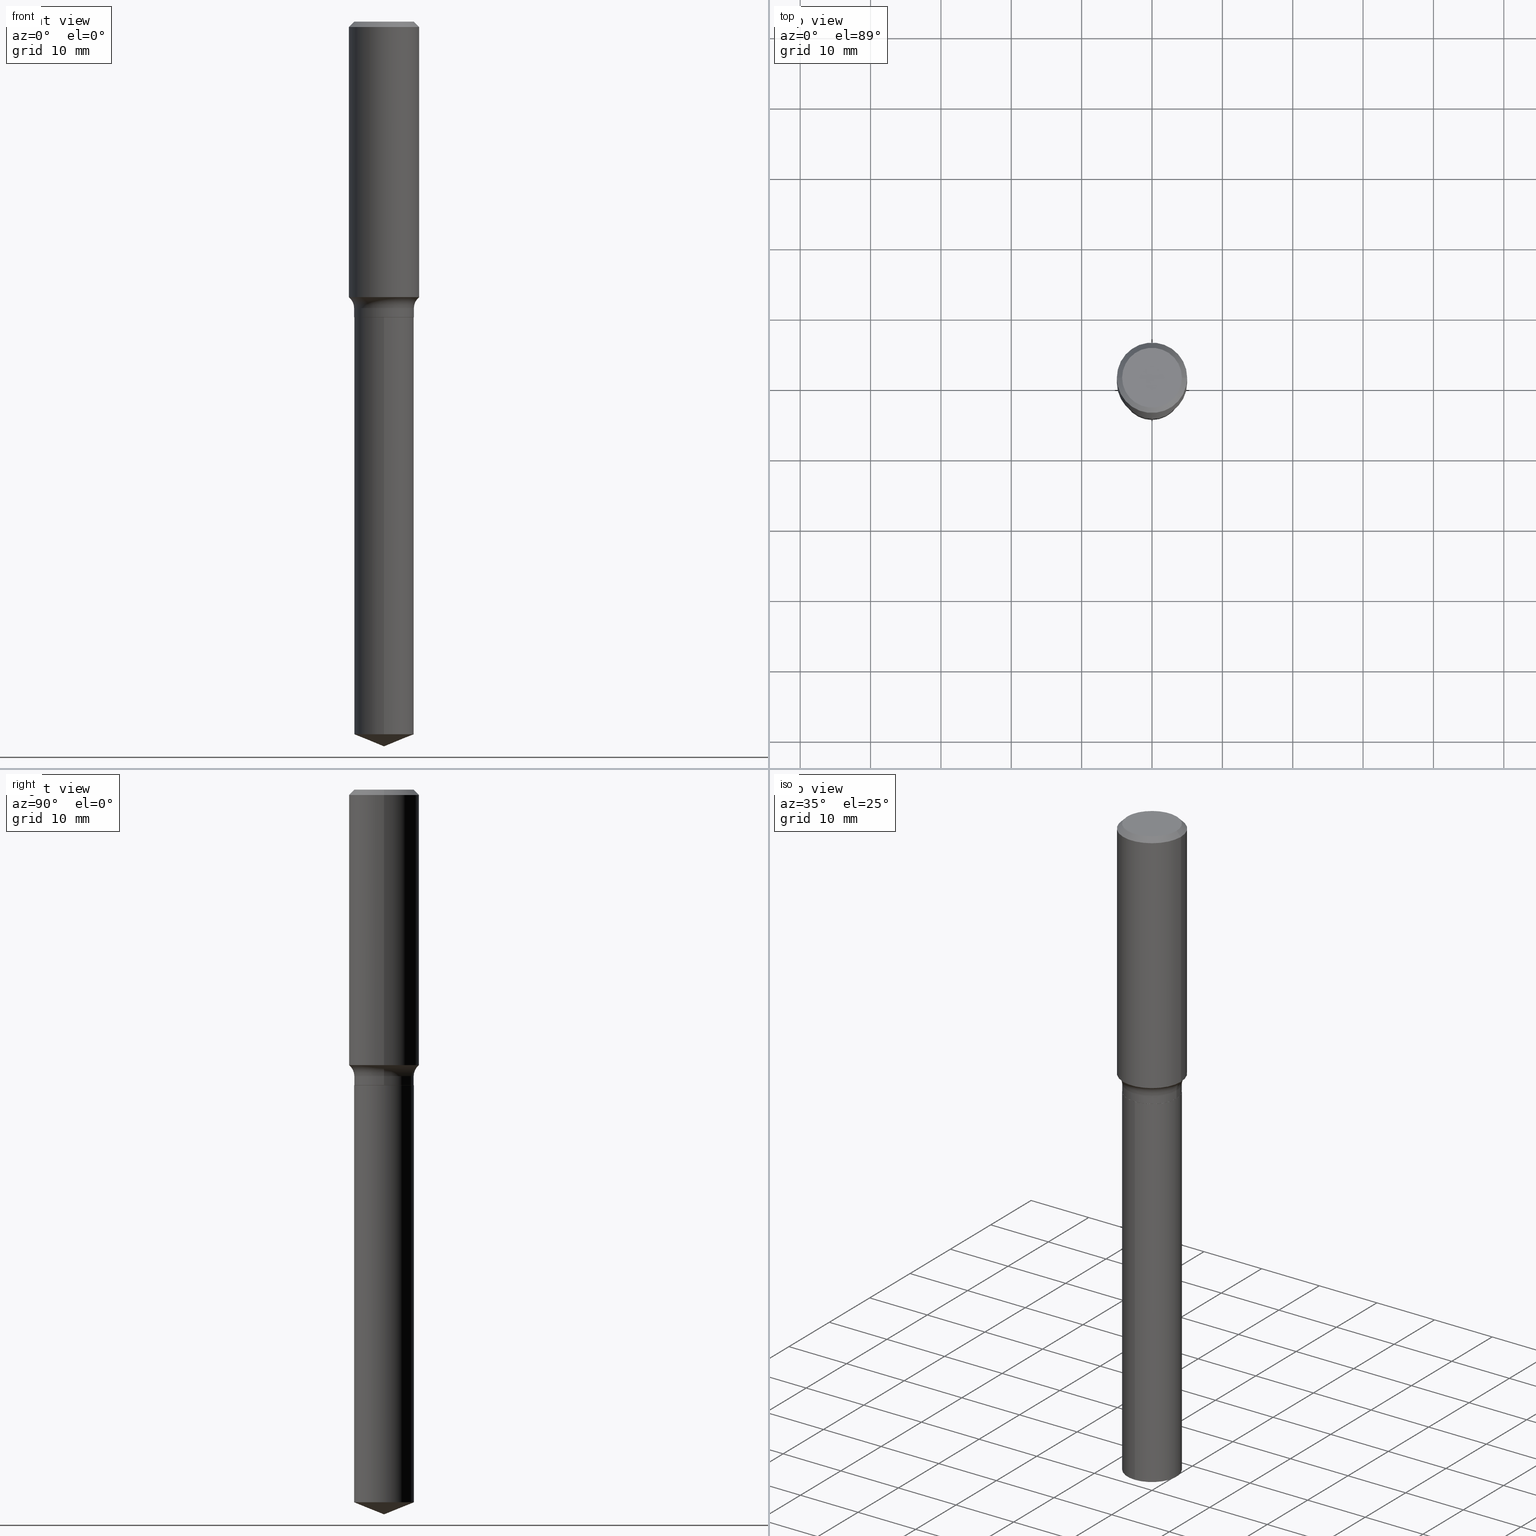
[diagram: canonical four-view strip — front | top / right | iso, engineering-drawing reading convention]
A machine part, canonical four-view strip (front | top / right | iso — engineering-drawing reading convention). The complete STEP part file that produces these views, byte-faithful:
ISO-10303-21;
HEADER;
FILE_DESCRIPTION (( 'STEP AP203' ),
    '1' );
FILE_NAME ('69278.STEP',
    '2024-04-19T17:37:56',
    ( '' ),
    ( '' ),
    'SwSTEP 2.0',
    'SolidWorks 2023',
    '' );
FILE_SCHEMA (( 'CONFIG_CONTROL_DESIGN' ));
ENDSEC;

DATA;
#1 = DIRECTION ( 'NONE',  ( 1.000000000000000000, -6.982962677686264344E-15, 0.000000000000000000 ) ) ;
#2 = CARTESIAN_POINT ( 'NONE',  ( 7.220858017463212113E-31, -1.030947152326916979E-16, -0.02952750000000020289 ) ) ;
#3 = APPROVAL_ROLE ( '' ) ;
#4 = DIRECTION ( 'NONE',  ( 1.000000000000000000, -6.982962677686265922E-15, 0.000000000000000000 ) ) ;
#5 = CONICAL_SURFACE ( 'NONE', #99, 97.44436430772995550, 1.186823891356150407 ) ;
#6 = CIRCLE ( 'NONE', #306, 0.1673000000000000043 ) ;
#7 = ADVANCED_FACE ( 'NONE', ( #241 ), #122, .T. ) ;
#8 = LINE ( 'NONE', #243, #263 ) ;
#9 = DATE_AND_TIME ( #152, #393 ) ;
#10 = ORIENTED_EDGE ( 'NONE', *, *, #244, .F. ) ;
#11 = DIRECTION ( 'NONE',  ( 6.982962677686265922E-15, 1.000000000000000000, -3.491426395809013417E-15 ) ) ;
#12 = ORIENTED_EDGE ( 'NONE', *, *, #453, .F. ) ;
#13 = CARTESIAN_POINT ( 'NONE',  ( 3.919597402553536225E-29, -5.596146289897792721E-15, -1.602800000000000002 ) ) ;
#14 = DIRECTION ( 'NONE',  ( 1.000000000000000000, -6.982962677686261977E-15, 0.000000000000000000 ) ) ;
#15 = EDGE_LOOP ( 'NONE', ( #163, #85, #10, #12 ) ) ;
#16 = DIRECTION ( 'NONE',  ( 1.000000000000000000, -6.982962677686264344E-15, 0.000000000000000000 ) ) ;
#17 = ORIENTED_EDGE ( 'NONE', *, *, #411, .T. ) ;
#18 = EDGE_LOOP ( 'NONE', ( #340, #235, #157, #296 ) ) ;
#19 = DIRECTION ( 'NONE',  ( -2.445468806185136597E-29, 3.491481338843145583E-15, 1.000000000000000000 ) ) ;
#20 = CC_DESIGN_PERSON_AND_ORGANIZATION_ASSIGNMENT ( #327, #475, ( #255 ) ) ;
#21 = ORIENTED_EDGE ( 'NONE', *, *, #299, .T. ) ;
#22 = DIRECTION ( 'NONE',  ( 1.000000000000000000, 0.000000000000000000, 0.000000000000000000 ) ) ;
#23 = DIRECTION ( 'NONE',  ( -1.000000000000000000, 6.982962677686266711E-15, 0.000000000000000000 ) ) ;
#24 = EDGE_CURVE ( 'NONE', #25, #224, #87, .T. ) ;
#25 = VERTEX_POINT ( 'NONE', #468 ) ;
#26 = CARTESIAN_POINT ( 'NONE',  ( -0.1968500000000002192, -3.984016639519789812E-15, -1.541672285336354919 ) ) ;
#27 = CARTESIAN_POINT ( 'NONE',  ( 7.220858017463212113E-31, -1.030947152326916979E-16, -0.02952750000000020289 ) ) ;
#28 = EDGE_CURVE ( 'NONE', #367, #407, #335, .T. ) ;
#29 = CIRCLE ( 'NONE', #111, 0.1668000000000000038 ) ;
#30 = ORIENTED_EDGE ( 'NONE', *, *, #69, .T. ) ;
#31 = DESIGN_CONTEXT ( 'detailed design', #391, 'design' ) ;
#32 = CIRCLE ( 'NONE', #426, 0.1673000000000000043 ) ;
#33 = DIRECTION ( 'NONE',  ( -6.982962677686266711E-15, -1.000000000000000000, 3.265807523806650431E-15 ) ) ;
#34 = APPROVAL_PERSON_ORGANIZATION ( #373, #126, #165 ) ;
#35 = ORIENTED_EDGE ( 'NONE', *, *, #177, .F. ) ;
#36 = DATE_AND_TIME ( #135, #456 ) ;
#37 = LINE ( 'NONE', #414, #352 ) ;
#38 = ADVANCED_FACE ( 'NONE', ( #428 ), #382, .F. ) ;
#39 = DIRECTION ( 'NONE',  ( -6.982962677686265133E-15, -1.000000000000000000, 3.498761904101772732E-15 ) ) ;
#40 = ORIENTED_EDGE ( 'NONE', *, *, #264, .T. ) ;
#41 = AXIS2_PLACEMENT_3D ( 'NONE', #13, #62, #362 ) ;
#42 = PRODUCT_DEFINITION_FORMATION_WITH_SPECIFIED_SOURCE ( 'ANY', '', #255, .NOT_KNOWN. ) ;
#43 = DIRECTION ( 'NONE',  ( 1.000000000000000000, -6.982962677686267499E-15, 4.876294436782262290E-29 ) ) ;
#44 = DATE_AND_TIME ( #237, #100 ) ;
#45 = EDGE_CURVE ( 'NONE', #219, #415, #324, .T. ) ;
#46 = DIRECTION ( 'NONE',  ( -6.982962677686266711E-15, -1.000000000000000000, 3.265807523806650431E-15 ) ) ;
#47 = CARTESIAN_POINT ( 'NONE',  ( 3.919597402553536225E-29, -5.596146289897792721E-15, -1.602800000000000002 ) ) ;
#48 = CC_DESIGN_PERSON_AND_ORGANIZATION_ASSIGNMENT ( #492, #245, ( #369 ) ) ;
#49 = FACE_OUTER_BOUND ( 'NONE', #15, .T. ) ;
#50 = AXIS2_PLACEMENT_3D ( 'NONE', #54, #346, #168 ) ;
#51 = VECTOR ( 'NONE', #389, 39.37007874015748143 ) ;
#52 = CARTESIAN_POINT ( 'NONE',  ( -1.001697619218021790E-46, 1.430158722866389718E-32, 4.096137381448108366E-18 ) ) ;
#53 = LINE ( 'NONE', #181, #232 ) ;
#54 = CARTESIAN_POINT ( 'NONE',  ( -1.001697619218021790E-46, 1.430158722866389718E-32, 4.096137381448108366E-18 ) ) ;
#55 = DIRECTION ( 'NONE',  ( 0.000000000000000000, 0.000000000000000000, 1.000000000000000000 ) ) ;
#56 = VERTEX_POINT ( 'NONE', #252 ) ;
#57 = CARTESIAN_POINT ( 'NONE',  ( 0.000000000000000000, 0.000000000000000000, 0.000000000000000000 ) ) ;
#58 = EDGE_LOOP ( 'NONE', ( #40, #248, #35, #269 ) ) ;
#59 = EDGE_CURVE ( 'NONE', #321, #413, #32, .T. ) ;
#60 = MECHANICAL_CONTEXT ( 'NONE', #339, 'mechanical' ) ;
#61 = EDGE_LOOP ( 'NONE', ( #155, #156, #190, #275 ) ) ;
#62 = DIRECTION ( 'NONE',  ( -2.445468806185136597E-29, 3.491481338843145583E-15, 1.000000000000000000 ) ) ;
#63 = AXIS2_PLACEMENT_3D ( 'NONE', #2, #460, #491 ) ;
#64 = DIRECTION ( 'NONE',  ( 2.445468806185136597E-29, -3.491481338843145583E-15, -1.000000000000000000 ) ) ;
#65 = CONICAL_SURFACE ( 'NONE', #410, 0.1968500000000000527, 0.7853981633974457255 ) ;
#66 = ORIENTED_EDGE ( 'NONE', *, *, #82, .T. ) ;
#67 = APPLICATION_PROTOCOL_DEFINITION ( 'international standard', 'config_control_design', 1994, #339 ) ;
#68 = CARTESIAN_POINT ( 'NONE',  ( -1.168249655976871963E-15, -0.1673000000000057774, -1.653399999999999093 ) ) ;
#69 = EDGE_CURVE ( 'NONE', #351, #400, #308, .T. ) ;
#70 = ADVANCED_FACE ( 'NONE', ( #49 ), #86, .T. ) ;
#71 = ORIENTED_EDGE ( 'NONE', *, *, #469, .F. ) ;
#72 = CARTESIAN_POINT ( 'NONE',  ( -0.1968500000000001360, 1.398703375343758182E-15, -9.682923725166790684E-30 ) ) ;
#73 = CIRCLE ( 'NONE', #480, 0.1673000000000000043 ) ;
#74 = ORIENTED_EDGE ( 'NONE', *, *, #140, .F. ) ;
#75 = AXIS2_PLACEMENT_3D ( 'NONE', #222, #294, #398 ) ;
#76 = CARTESIAN_POINT ( 'NONE',  ( 7.220858017463212113E-31, -1.030947152326916979E-16, -0.02952750000000020289 ) ) ;
#77 = ORIENTED_EDGE ( 'NONE', *, *, #469, .T. ) ;
#78 = ORIENTED_EDGE ( 'NONE', *, *, #299, .F. ) ;
#79 = APPROVAL_STATUS ( 'not_yet_approved' ) ;
#80 = CYLINDRICAL_SURFACE ( 'NONE', #440, 0.1673000000000000043 ) ;
#81 = AXIS2_PLACEMENT_3D ( 'NONE', #97, #55, #22 ) ;
#82 = EDGE_CURVE ( 'NONE', #415, #219, #350, .T. ) ;
#83 = APPROVAL_STATUS ( 'not_yet_approved' ) ;
#84 = DIRECTION ( 'NONE',  ( -2.445468806185136877E-29, 3.491481338843145188E-15, 1.000000000000000000 ) ) ;
#85 = ORIENTED_EDGE ( 'NONE', *, *, #159, .T. ) ;
#86 = CYLINDRICAL_SURFACE ( 'NONE', #463, 0.1673000000000000043 ) ;
#87 = CIRCLE ( 'NONE', #63, 0.1968500000000000527 ) ;
#88 = CIRCLE ( 'NONE', #236, 0.1673000000000000043 ) ;
#89 = PERSON ( 'UNSPECIFIED', 'UNSPECIFIED', 'UNSPECIFIED', ('UNSPECIFIED'), ('UNSPECIFIED'), ('UNSPECIFIED') ) ;
#90 = DIRECTION ( 'NONE',  ( -6.982962677686266711E-15, -1.000000000000000000, 3.491481338843145583E-15 ) ) ;
#91 = DIRECTION ( 'NONE',  ( -2.445468806185136597E-29, 3.491481338843145583E-15, 1.000000000000000000 ) ) ;
#92 = EDGE_LOOP ( 'NONE', ( #365, #30, #355, #303 ) ) ;
#93 = DIRECTION ( 'NONE',  ( -2.445507172700810819E-29, 3.491426395809013811E-15, 1.000000000000000000 ) ) ;
#94 = CARTESIAN_POINT ( 'NONE',  ( -0.1968500000000000527, 1.271501487869850317E-15, -0.02952750000000020289 ) ) ;
#95 = DIRECTION ( 'NONE',  ( -2.445468806185136597E-29, 3.491481338843145583E-15, 1.000000000000000000 ) ) ;
#96 = DIRECTION ( 'NONE',  ( 7.105427357601001859E-15, 1.000000000000000000, -3.491481338843145583E-15 ) ) ;
#97 = CARTESIAN_POINT ( 'NONE',  ( 0.000000000000000000, 0.000000000000000000, 0.000000000000000000 ) ) ;
#98 = MANIFOLD_SOLID_BREP ( 'Body-Move/Copy2[2]', #487 ) ;
#99 = AXIS2_PLACEMENT_3D ( 'NONE', #333, #266, #228 ) ;
#100 = LOCAL_TIME ( 13, 37, 56.00000000000000000, #313 ) ;
#101 = FACE_OUTER_BOUND ( 'NONE', #359, .T. ) ;
#102 = MANIFOLD_SOLID_BREP ( 'Body-Move/Copy2[1]', #402 ) ;
#103 = ORIENTED_EDGE ( 'NONE', *, *, #371, .F. ) ;
#104 = CARTESIAN_POINT ( 'NONE',  ( 4.043338124146504977E-29, -5.772815245643255982E-15, -1.653399999999999981 ) ) ;
#105 = ADVANCED_FACE ( 'NONE', ( #385 ), #132, .F. ) ;
#106 = CARTESIAN_POINT ( 'NONE',  ( 0.1968500000000000527, -1.477690918335233688E-15, -0.02952750000000020289 ) ) ;
#107 = VERTEX_POINT ( 'NONE', #131 ) ;
#108 = APPROVAL_ROLE ( '' ) ;
#109 = DIRECTION ( 'NONE',  ( 1.000000000000000000, -6.982962677686266711E-15, 4.876176775795935793E-29 ) ) ;
#110 = VECTOR ( 'NONE', #142, 39.37007874015748143 ) ;
#111 = AXIS2_PLACEMENT_3D ( 'NONE', #366, #257, #328 ) ;
#112 = COORDINATED_UNIVERSAL_TIME_OFFSET ( 5, 0, .BEHIND. ) ;
#113 = ADVANCED_FACE ( 'NONE', ( #316 ), #280, .T. ) ;
#114 = LINE ( 'NONE', #72, #305 ) ;
#115 = EDGE_LOOP ( 'NONE', ( #412, #471 ) ) ;
#116 = DIRECTION ( 'NONE',  ( -1.000000000000000000, 6.982962677686265922E-15, -4.876176775795935793E-29 ) ) ;
#117 = ORIENTED_EDGE ( 'NONE', *, *, #24, .T. ) ;
#118 = EDGE_CURVE ( 'NONE', #215, #458, #8, .T. ) ;
#119 = FACE_OUTER_BOUND ( 'NONE', #162, .T. ) ;
#120 = EDGE_CURVE ( 'NONE', #351, #367, #332, .T. ) ;
#121 = CARTESIAN_POINT ( 'NONE',  ( 4.043338124146503856E-29, -5.772815245643255193E-15, -1.653399999999999537 ) ) ;
#122 = CYLINDRICAL_SURFACE ( 'NONE', #447, 0.1673000000000000043 ) ;
#123 = VECTOR ( 'NONE', #298, 39.37007874015748143 ) ;
#124 = CARTESIAN_POINT ( 'NONE',  ( 4.043338124146503856E-29, -5.772815245643255193E-15, -1.653399999999999537 ) ) ;
#125 = LOCAL_TIME ( 13, 37, 56.00000000000000000, #112 ) ;
#126 = APPROVAL ( #83, 'UNSPECIFIED' ) ;
#127 = DATE_TIME_ROLE ( 'classification_date' ) ;
#128 = CARTESIAN_POINT ( 'NONE',  ( 0.1673000000000000043, -1.168249655976912392E-15, 8.157843745906601613E-30 ) ) ;
#129 = CARTESIAN_POINT ( 'NONE',  ( 4.043338124146503856E-29, -5.772815245643255193E-15, -1.653399999999999537 ) ) ;
#130 = LINE ( 'NONE', #94, #51 ) ;
#131 = CARTESIAN_POINT ( 'NONE',  ( -1.168249655976814574E-15, -0.1673000000000139098, -3.987406412417778601 ) ) ;
#132 = TOROIDAL_SURFACE ( 'NONE', #281, 0.2452999999999999625, 0.07799999999999993050 ) ;
#133 = CC_DESIGN_SECURITY_CLASSIFICATION ( #369, ( #42 ) ) ;
#134 = DIRECTION ( 'NONE',  ( -2.445507172700810819E-29, 3.491426395809013811E-15, 1.000000000000000000 ) ) ;
#135 = CALENDAR_DATE ( 2024, 19, 4 ) ;
#136 = ORIENTED_EDGE ( 'NONE', *, *, #120, .T. ) ;
#137 = CARTESIAN_POINT ( 'NONE',  ( 4.043338124146504977E-29, -5.772815245643255982E-15, -1.653399999999999981 ) ) ;
#138 = CARTESIAN_POINT ( 'NONE',  ( 0.2452999999999999625, -7.309067034734233554E-15, -1.602800000000000002 ) ) ;
#139 = ORIENTED_EDGE ( 'NONE', *, *, #45, .T. ) ;
#140 = EDGE_CURVE ( 'NONE', #107, #458, #153, .T. ) ;
#141 = DIRECTION ( 'NONE',  ( -0.7071067811864267805, 7.493145998869918709E-15, 0.7071067811866682540 ) ) ;
#142 = DIRECTION ( 'NONE',  ( -2.445468806185136877E-29, 3.491481338843145188E-15, 1.000000000000000000 ) ) ;
#143 = CARTESIAN_POINT ( 'NONE',  ( 0.1968500000000001360, -1.374596203102542594E-15, 9.598753983154306463E-30 ) ) ;
#144 = CONICAL_SURFACE ( 'NONE', #408, 0.1668000000000000038, 0.7853981633972775267 ) ;
#145 = DIRECTION ( 'NONE',  ( 1.000000000000000000, -6.982962677686264344E-15, 0.000000000000000000 ) ) ;
#146 = EDGE_LOOP ( 'NONE', ( #200, #430, #259, #482 ) ) ;
#147 = DIMENSIONAL_EXPONENTS ( 1.000000000000000000, 0.000000000000000000, 0.000000000000000000, 0.000000000000000000, 0.000000000000000000, 0.000000000000000000, 0.000000000000000000 ) ;
#148 = APPLICATION_PROTOCOL_DEFINITION ( 'international standard', 'config_control_design', 1994, #391 ) ;
#149 = CARTESIAN_POINT ( 'NONE',  ( -1.168249655976871963E-15, -0.1673000000000057774, -1.653399999999999093 ) ) ;
#150 = ADVANCED_FACE ( 'NONE', ( #250 ), #388, .F. ) ;
#151 = EDGE_LOOP ( 'NONE', ( #78, #307, #74 ) ) ;
#152 = CALENDAR_DATE ( 2024, 19, 4 ) ;
#153 = CIRCLE ( 'NONE', #417, 0.1673000000000000043 ) ;
#154 = CIRCLE ( 'NONE', #246, 0.1673000000000000043 ) ;
#155 = ORIENTED_EDGE ( 'NONE', *, *, #159, .F. ) ;
#156 = ORIENTED_EDGE ( 'NONE', *, *, #375, .T. ) ;
#157 = ORIENTED_EDGE ( 'NONE', *, *, #59, .F. ) ;
#158 = CARTESIAN_POINT ( 'NONE',  ( 0.1673000000000000043, -6.764395945874704719E-15, -1.602800000000000002 ) ) ;
#159 = EDGE_CURVE ( 'NONE', #363, #400, #320, .T. ) ;
#160 = CIRCLE ( 'NONE', #191, 0.1968500000000000527 ) ;
#161 = ADVANCED_FACE ( 'NONE', ( #101 ), #254, .T. ) ;
#162 = EDGE_LOOP ( 'NONE', ( #66, #139 ) ) ;
#163 = ORIENTED_EDGE ( 'NONE', *, *, #177, .T. ) ;
#164 = DIRECTION ( 'NONE',  ( -6.982962677686266711E-15, -1.000000000000000000, 3.265807523806650431E-15 ) ) ;
#165 = APPROVAL_ROLE ( '' ) ;
#166 = CC_DESIGN_APPROVAL ( #459, ( #233 ) ) ;
#167 = PERSON_AND_ORGANIZATION ( #89, #212 ) ;
#168 = DIRECTION ( 'NONE',  ( 1.000000000000000000, -6.982962677686267499E-15, 4.876294436782262290E-29 ) ) ;
#169 = CARTESIAN_POINT ( 'NONE',  ( 1.188737996926744868E-15, 0.1672999999999860432, -3.987406412417779933 ) ) ;
#170 = PRODUCT_RELATED_PRODUCT_CATEGORY ( 'detail', '', ( #255 ) ) ;
#171 = DIRECTION ( 'NONE',  ( -1.000000000000000000, 7.105427357601001859E-15, 0.000000000000000000 ) ) ;
#172 = COORDINATED_UNIVERSAL_TIME_OFFSET ( 5, 0, .BEHIND. ) ;
#173 = CARTESIAN_POINT ( 'NONE',  ( -8.636334179874603903E-28, 1.232999072406469164E-13, 35.31507874015748172 ) ) ;
#174 = AXIS2_PLACEMENT_3D ( 'NONE', #216, #357, #180 ) ;
#175 = VECTOR ( 'NONE', #405, 39.37007874015748143 ) ;
#176 = CARTESIAN_POINT ( 'NONE',  ( 3.770111483150206661E-29, -5.382720014863548388E-15, -1.541672285336354919 ) ) ;
#177 = EDGE_CURVE ( 'NONE', #404, #363, #73, .T. ) ;
#178 = DIRECTION ( 'NONE',  ( -2.445468806185136597E-29, 3.491481338843145583E-15, 1.000000000000000000 ) ) ;
#179 = CC_DESIGN_DATE_AND_TIME_ASSIGNMENT ( #274, #127, ( #369 ) ) ;
#180 = DIRECTION ( 'NONE',  ( 1.000000000000000000, -6.982962677686266711E-15, 4.876176775795935793E-29 ) ) ;
#181 = CARTESIAN_POINT ( 'NONE',  ( -0.1668000000000000038, -4.587629962395409239E-15, -1.653399999999999981 ) ) ;
#182 = AXIS2_PLACEMENT_3D ( 'NONE', #138, #90, #14 ) ;
#183 = CC_DESIGN_APPROVAL ( #126, ( #369 ) ) ;
#184 = DIRECTION ( 'NONE',  ( -2.445468806185136877E-29, 3.491481338843145188E-15, 1.000000000000000000 ) ) ;
#185 = EDGE_LOOP ( 'NONE', ( #103, #485, #292, #195 ) ) ;
#186 = DIRECTION ( 'NONE',  ( 1.000000000000000000, -6.982962677686266711E-15, 0.000000000000000000 ) ) ;
#187 = PERSON_AND_ORGANIZATION ( #89, #212 ) ;
#188 = CC_DESIGN_PERSON_AND_ORGANIZATION_ASSIGNMENT ( #199, #240, ( #42 ) ) ;
#189 = CARTESIAN_POINT ( 'NONE',  ( -0.1668000000000000038, -4.584980735221298038E-15, -1.653399999999999981 ) ) ;
#190 = ORIENTED_EDGE ( 'NONE', *, *, #453, .T. ) ;
#191 = AXIS2_PLACEMENT_3D ( 'NONE', #258, #399, #186 ) ;
#192 = APPROVAL_PERSON_ORGANIZATION ( #167, #278, #3 ) ;
#193 = ORIENTED_EDGE ( 'NONE', *, *, #82, .F. ) ;
#194 = CARTESIAN_POINT ( 'NONE',  ( 0.1673000000000000043, -6.939319160950745687E-15, -1.652899999999999814 ) ) ;
#195 = ORIENTED_EDGE ( 'NONE', *, *, #375, .F. ) ;
#196 = SECURITY_CLASSIFICATION_LEVEL ( 'unclassified' ) ;
#197 = CARTESIAN_POINT ( 'NONE',  ( -0.1673224999999999851, 1.219954130253505460E-15, 4.096137381439757534E-18 ) ) ;
#198 = ORIENTED_EDGE ( 'NONE', *, *, #326, .F. ) ;
#199 = PERSON_AND_ORGANIZATION ( #89, #212 ) ;
#200 = ORIENTED_EDGE ( 'NONE', *, *, #69, .F. ) ;
#201 = TOROIDAL_SURFACE ( 'NONE', #41, 0.2452999999999999625, 0.07799999999999993050 ) ;
#202 = DATE_TIME_ROLE ( 'creation_date' ) ;
#203 = AXIS2_PLACEMENT_3D ( 'NONE', #173, #247, #39 ) ;
#204 = DIRECTION ( 'NONE',  ( -2.438088387897960049E-29, 3.491481338843145188E-15, 1.000000000000000000 ) ) ;
#205 = PERSON_AND_ORGANIZATION ( #89, #212 ) ;
#206 = ADVANCED_FACE ( 'NONE', ( #295 ), #439, .T. ) ;
#207 = DIRECTION ( 'NONE',  ( -2.445468806185136597E-29, 3.491481338843145583E-15, 1.000000000000000000 ) ) ;
#208 = VERTEX_POINT ( 'NONE', #189 ) ;
#209 = EDGE_CURVE ( 'NONE', #219, #224, #443, .T. ) ;
#210 = DIRECTION ( 'NONE',  ( -2.445507172700810819E-29, 3.491426395809013811E-15, 1.000000000000000000 ) ) ;
#211 = AXIS2_PLACEMENT_3D ( 'NONE', #129, #354, #11 ) ;
#212 = ORGANIZATION ( 'UNSPECIFIED', 'UNSPECIFIED', '' ) ;
#213 = ADVANCED_FACE ( 'NONE', ( #444 ), #5, .T. ) ;
#214 = DIRECTION ( 'NONE',  ( -2.445468806185136597E-29, 3.491481338843145583E-15, 1.000000000000000000 ) ) ;
#215 = VERTEX_POINT ( 'NONE', #301 ) ;
#216 = CARTESIAN_POINT ( 'NONE',  ( 0.000000000000000000, 0.000000000000000000, 0.000000000000000000 ) ) ;
#217 = EDGE_LOOP ( 'NONE', ( #451, #136, #462, #318 ) ) ;
#218 = CARTESIAN_POINT ( 'NONE',  ( 4.042115389743411055E-29, -5.771069504973833690E-15, -1.652899999999999814 ) ) ;
#219 = VERTEX_POINT ( 'NONE', #474 ) ;
#220 = EDGE_LOOP ( 'NONE', ( #353, #370, #289, #71 ) ) ;
#221 = EDGE_CURVE ( 'NONE', #351, #25, #114, .T. ) ;
#222 = CARTESIAN_POINT ( 'NONE',  ( 3.770111483150206661E-29, -5.382720014863548388E-15, -1.541672285336354919 ) ) ;
#223 = AXIS2_PLACEMENT_3D ( 'NONE', #396, #204, #424 ) ;
#224 = VERTEX_POINT ( 'NONE', #106 ) ;
#225 = APPROVAL_DATE_TIME ( #403, #459 ) ;
#226 = DIRECTION ( 'NONE',  ( -2.445507172700810819E-29, 3.491426395809013417E-15, 1.000000000000000000 ) ) ;
#227 = EDGE_CURVE ( 'NONE', #224, #25, #160, .T. ) ;
#228 = DIRECTION ( 'NONE',  ( -6.982962677686265133E-15, -1.000000000000000000, 3.498761904101772732E-15 ) ) ;
#229 = ORIENTED_EDGE ( 'NONE', *, *, #118, .F. ) ;
#230 = VECTOR ( 'NONE', #472, 39.37007874015748854 ) ;
#231 = CONICAL_SURFACE ( 'NONE', #437, 0.1668000000000000038, 0.7853981633972775267 ) ;
#232 = VECTOR ( 'NONE', #141, 39.37007874015748143 ) ;
#233 = PRODUCT_DEFINITION ( 'UNKNOWN', '', #42, #31 ) ;
#234 = DIRECTION ( 'NONE',  ( -1.000000000000000000, 6.982962677686266711E-15, 0.000000000000000000 ) ) ;
#235 = ORIENTED_EDGE ( 'NONE', *, *, #395, .T. ) ;
#236 = AXIS2_PLACEMENT_3D ( 'NONE', #121, #304, #33 ) ;
#237 = CALENDAR_DATE ( 2024, 19, 4 ) ;
#238 = DIRECTION ( 'NONE',  ( -2.445468806185136597E-29, 3.491481338843145583E-15, 1.000000000000000000 ) ) ;
#239 = ORIENTED_EDGE ( 'NONE', *, *, #465, .F. ) ;
#240 = PERSON_AND_ORGANIZATION_ROLE ( 'creator' ) ;
#241 = FACE_OUTER_BOUND ( 'NONE', #61, .T. ) ;
#242 = CARTESIAN_POINT ( 'NONE',  ( 4.043338124146504977E-29, -5.772815245643255982E-15, -1.653399999999999981 ) ) ;
#243 = CARTESIAN_POINT ( 'NONE',  ( 9.916532697805385385E-29, -1.415773403500555029E-14, -4.054999999999999716 ) ) ;
#244 = EDGE_CURVE ( 'NONE', #407, #400, #455, .T. ) ;
#245 = PERSON_AND_ORGANIZATION_ROLE ( 'classification_officer' ) ;
#246 = AXIS2_PLACEMENT_3D ( 'NONE', #282, #386, #377 ) ;
#247 = DIRECTION ( 'NONE',  ( -2.445507172700810819E-29, 3.491426395809013811E-15, 1.000000000000000000 ) ) ;
#248 = ORIENTED_EDGE ( 'NONE', *, *, #371, .T. ) ;
#249 = DIRECTION ( 'NONE',  ( -2.445468806185136597E-29, 3.491481338843145583E-15, 1.000000000000000000 ) ) ;
#250 = FACE_OUTER_BOUND ( 'NONE', #302, .T. ) ;
#251 = DIRECTION ( 'NONE',  ( -2.445507172700810819E-29, 3.491426395809013811E-15, 1.000000000000000000 ) ) ;
#252 = CARTESIAN_POINT ( 'NONE',  ( 0.1668000000000000038, -6.937573420281325762E-15, -1.653399999999999981 ) ) ;
#253 = AXIS2_PLACEMENT_3D ( 'NONE', #329, #238, #343 ) ;
#254 = CYLINDRICAL_SURFACE ( 'NONE', #174, 0.1968500000000001360 ) ;
#255 = PRODUCT ( '69278', '69278', '', ( #60 ) ) ;
#256 = ORIENTED_EDGE ( 'NONE', *, *, #395, .F. ) ;
#257 = DIRECTION ( 'NONE',  ( -2.445468806185136597E-29, 3.491481338843145583E-15, 1.000000000000000000 ) ) ;
#258 = CARTESIAN_POINT ( 'NONE',  ( 7.220858017463212113E-31, -1.030947152326916979E-16, -0.02952750000000020289 ) ) ;
#259 = ORIENTED_EDGE ( 'NONE', *, *, #28, .T. ) ;
#260 = CC_DESIGN_PERSON_AND_ORGANIZATION_ASSIGNMENT ( #205, #376, ( #42 ) ) ;
#261 = CALENDAR_DATE ( 2024, 19, 4 ) ;
#262 = CARTESIAN_POINT ( 'NONE',  ( -0.1673000000000000043, -4.494869900509165959E-15, -1.652899999999999814 ) ) ;
#263 = VECTOR ( 'NONE', #435, 39.37007874015748854 ) ;
#264 = EDGE_CURVE ( 'NONE', #56, #208, #368, .T. ) ;
#265 = ADVANCED_FACE ( 'NONE', ( #467 ), #231, .T. ) ;
#266 = DIRECTION ( 'NONE',  ( -2.445507172700810819E-29, 3.491426395809013811E-15, 1.000000000000000000 ) ) ;
#267 = ORIENTED_EDGE ( 'NONE', *, *, #227, .F. ) ;
#268 = CIRCLE ( 'NONE', #75, 0.1968500000000002470 ) ;
#269 = ORIENTED_EDGE ( 'NONE', *, *, #490, .F. ) ;
#270 = ORIENTED_EDGE ( 'NONE', *, *, #411, .F. ) ;
#271 = CC_DESIGN_PERSON_AND_ORGANIZATION_ASSIGNMENT ( #187, #330, ( #233 ) ) ;
#272 = CARTESIAN_POINT ( 'NONE',  ( 1.188737996926745460E-15, 0.1672999999999942311, -1.653400000000000203 ) ) ;
#273 = DIRECTION ( 'NONE',  ( -2.445468806185136597E-29, 3.491481338843145583E-15, 1.000000000000000000 ) ) ;
#274 = DATE_AND_TIME ( #420, #481 ) ;
#275 = ORIENTED_EDGE ( 'NONE', *, *, #433, .F. ) ;
#276 = COORDINATED_UNIVERSAL_TIME_OFFSET ( 5, 0, .BEHIND. ) ;
#277 = CARTESIAN_POINT ( 'NONE',  ( 0.1668000000000000038, -6.937573420281325762E-15, -1.653399999999999981 ) ) ;
#278 = APPROVAL ( #79, 'UNSPECIFIED' ) ;
#279 = CARTESIAN_POINT ( 'NONE',  ( 4.042115389743411055E-29, -5.771069504973833690E-15, -1.652899999999999814 ) ) ;
#280 = CYLINDRICAL_SURFACE ( 'NONE', #297, 0.1673000000000000043 ) ;
#281 = AXIS2_PLACEMENT_3D ( 'NONE', #431, #464, #438 ) ;
#282 = CARTESIAN_POINT ( 'NONE',  ( 9.751167546843870264E-29, -1.392182684194619226E-14, -3.987406412417779489 ) ) ;
#283 = CARTESIAN_POINT ( 'NONE',  ( 9.751167546843870264E-29, -1.392182684194619226E-14, -3.987406412417779489 ) ) ;
#284 = DIRECTION ( 'NONE',  ( -2.445468806185136597E-29, 3.491481338843145583E-15, 1.000000000000000000 ) ) ;
#285 = CARTESIAN_POINT ( 'NONE',  ( 4.043338124146503856E-29, -5.772815245643255193E-15, -1.653399999999999537 ) ) ;
#286 = DIRECTION ( 'NONE',  ( 1.000000000000000000, -6.982962677686266711E-15, 4.876176775795936353E-29 ) ) ;
#287 = AXIS2_PLACEMENT_3D ( 'NONE', #392, #96, #171 ) ;
#288 = DIRECTION ( 'NONE',  ( -2.445468806185136597E-29, 3.491481338843145583E-15, 1.000000000000000000 ) ) ;
#289 = ORIENTED_EDGE ( 'NONE', *, *, #227, .T. ) ;
#290 = CARTESIAN_POINT ( 'NONE',  ( 9.916404714907756114E-29, -1.415791572063081844E-14, -4.054999999999999716 ) ) ;
#291 = ADVANCED_FACE ( 'NONE', ( #457 ), #144, .T. ) ;
#292 = ORIENTED_EDGE ( 'NONE', *, *, #490, .T. ) ;
#293 = PERSON_AND_ORGANIZATION ( #89, #212 ) ;
#294 = DIRECTION ( 'NONE',  ( -2.445468806185136597E-29, 3.491481338843145583E-15, 1.000000000000000000 ) ) ;
#295 = FACE_OUTER_BOUND ( 'NONE', #220, .T. ) ;
#296 = ORIENTED_EDGE ( 'NONE', *, *, #364, .F. ) ;
#297 = AXIS2_PLACEMENT_3D ( 'NONE', #285, #134, #46 ) ;
#298 = DIRECTION ( 'NONE',  ( 0.7071067811865456854, -7.319954787623249734E-15, -0.7071067811865493491 ) ) ;
#299 = EDGE_CURVE ( 'NONE', #215, #107, #401, .T. ) ;
#300 = DIRECTION ( 'NONE',  ( 2.438088387897960049E-29, -3.491481338843145188E-15, -1.000000000000000000 ) ) ;
#301 = CARTESIAN_POINT ( 'NONE',  ( 9.916531585301787226E-29, -1.415773403500555029E-14, -4.054999999999999716 ) ) ;
#302 = EDGE_LOOP ( 'NONE', ( #421, #17 ) ) ;
#303 = ORIENTED_EDGE ( 'NONE', *, *, #28, .F. ) ;
#304 = DIRECTION ( 'NONE',  ( -2.445507172700810819E-29, 3.491426395809013811E-15, 1.000000000000000000 ) ) ;
#305 = VECTOR ( 'NONE', #184, 39.37007874015748143 ) ;
#306 = AXIS2_PLACEMENT_3D ( 'NONE', #47, #91, #1 ) ;
#307 = ORIENTED_EDGE ( 'NONE', *, *, #118, .T. ) ;
#308 = CIRCLE ( 'NONE', #287, 0.07799999999999995826 ) ;
#309 = SHAPE_DEFINITION_REPRESENTATION ( #466, #441 ) ;
#310 = LENGTH_MEASURE_WITH_UNIT ( LENGTH_MEASURE( 0.02539999999999999897 ), #423 );
#311 = ADVANCED_FACE ( 'NONE', ( #356 ), #201, .F. ) ;
#312 = EDGE_LOOP ( 'NONE', ( #256, #347, #446, #270 ) ) ;
#313 = COORDINATED_UNIVERSAL_TIME_OFFSET ( 5, 0, .BEHIND. ) ;
#314 = DIRECTION ( 'NONE',  ( -6.982962677686266711E-15, -1.000000000000000000, 3.265807523806650431E-15 ) ) ;
#315 = LINE ( 'NONE', #277, #489 ) ;
#316 = FACE_OUTER_BOUND ( 'NONE', #18, .T. ) ;
#317 = AXIS2_PLACEMENT_3D ( 'NONE', #218, #358, #16 ) ;
#318 = ORIENTED_EDGE ( 'NONE', *, *, #24, .F. ) ;
#319 = DIRECTION ( 'NONE',  ( 1.000000000000000000, -6.982962677686269866E-15, 0.000000000000000000 ) ) ;
#320 = LINE ( 'NONE', #470, #110 ) ;
#321 = VERTEX_POINT ( 'NONE', #149 ) ;
#322 = LINE ( 'NONE', #143, #175 ) ;
#323 = DIRECTION ( 'NONE',  ( -6.982962677686266711E-15, -1.000000000000000000, 3.265807523806650431E-15 ) ) ;
#324 = CIRCLE ( 'NONE', #50, 0.1673224999999999851 ) ;
#325 = VECTOR ( 'NONE', #226, 39.37007874015748143 ) ;
#326 = EDGE_CURVE ( 'NONE', #367, #224, #322, .T. ) ;
#327 = PERSON_AND_ORGANIZATION ( #89, #212 ) ;
#328 = DIRECTION ( 'NONE',  ( 1.000000000000000000, -6.982962677686265922E-15, 0.000000000000000000 ) ) ;
#329 = CARTESIAN_POINT ( 'NONE',  ( 3.919597402553536225E-29, -5.596146289897792721E-15, -1.602800000000000002 ) ) ;
#330 = PERSON_AND_ORGANIZATION_ROLE ( 'creator' ) ;
#331 = DIRECTION ( 'NONE',  ( 1.000000000000000000, -6.982962677686265922E-15, 0.000000000000000000 ) ) ;
#332 = CIRCLE ( 'NONE', #360, 0.1968500000000002470 ) ;
#333 = CARTESIAN_POINT ( 'NONE',  ( -8.636334179874603903E-28, 1.232999072406469164E-13, 35.31507874015748172 ) ) ;
#334 = CC_DESIGN_DATE_AND_TIME_ASSIGNMENT ( #9, #202, ( #233 ) ) ;
#335 = CIRCLE ( 'NONE', #182, 0.07799999999999995826 ) ;
#336 = VECTOR ( 'NONE', #84, 39.37007874015748143 ) ;
#337 = EDGE_CURVE ( 'NONE', #208, #56, #29, .T. ) ;
#338 = APPROVAL_DATE_TIME ( #36, #126 ) ;
#339 = APPLICATION_CONTEXT ( 'configuration controlled 3d designs of mechanical parts and assemblies' ) ;
#340 = ORIENTED_EDGE ( 'NONE', *, *, #140, .T. ) ;
#341 = EDGE_CURVE ( 'NONE', #367, #351, #268, .T. ) ;
#342 = LINE ( 'NONE', #128, #336 ) ;
#343 = DIRECTION ( 'NONE',  ( 1.000000000000000000, -6.982962677686264344E-15, 0.000000000000000000 ) ) ;
#344 = AXIS2_PLACEMENT_3D ( 'NONE', #104, #249, #4 ) ;
#345 = CARTESIAN_POINT ( 'NONE',  ( 4.043338124146503856E-29, -5.772815245643255193E-15, -1.653399999999999537 ) ) ;
#346 = DIRECTION ( 'NONE',  ( -2.445468806185136597E-29, 3.491481338843145583E-15, 1.000000000000000000 ) ) ;
#347 = ORIENTED_EDGE ( 'NONE', *, *, #465, .T. ) ;
#348 = ADVANCED_FACE ( 'NONE', ( #436 ), #442, .T. ) ;
#349 = CARTESIAN_POINT ( 'NONE',  ( 0.000000000000000000, 0.000000000000000000, 0.000000000000000000 ) ) ;
#350 = CIRCLE ( 'NONE', #452, 0.1673224999999999851 ) ;
#351 = VERTEX_POINT ( 'NONE', #26 ) ;
#352 = VECTOR ( 'NONE', #406, 39.37007874015748143 ) ;
#353 = ORIENTED_EDGE ( 'NONE', *, *, #45, .F. ) ;
#354 = DIRECTION ( 'NONE',  ( 2.445507172700810538E-29, -3.491426395809013417E-15, -1.000000000000000000 ) ) ;
#355 = ORIENTED_EDGE ( 'NONE', *, *, #433, .T. ) ;
#356 = FACE_OUTER_BOUND ( 'NONE', #92, .T. ) ;
#357 = DIRECTION ( 'NONE',  ( -2.445468806185136597E-29, 3.491481338843145583E-15, 1.000000000000000000 ) ) ;
#358 = DIRECTION ( 'NONE',  ( -2.445468806185136597E-29, 3.491481338843145583E-15, 1.000000000000000000 ) ) ;
#359 = EDGE_LOOP ( 'NONE', ( #483, #449, #267, #198 ) ) ;
#360 = AXIS2_PLACEMENT_3D ( 'NONE', #176, #207, #319 ) ;
#361 = AXIS2_PLACEMENT_3D ( 'NONE', #57, #19, #109 ) ;
#362 = DIRECTION ( 'NONE',  ( 1.000000000000000000, -6.982962677686268288E-15, 4.883557194083114022E-29 ) ) ;
#363 = VERTEX_POINT ( 'NONE', #262 ) ;
#364 = EDGE_CURVE ( 'NONE', #107, #321, #476, .T. ) ;
#365 = ORIENTED_EDGE ( 'NONE', *, *, #120, .F. ) ;
#366 = CARTESIAN_POINT ( 'NONE',  ( 4.043338124146504977E-29, -5.772815245643255982E-15, -1.653399999999999981 ) ) ;
#367 = VERTEX_POINT ( 'NONE', #394 ) ;
#368 = CIRCLE ( 'NONE', #344, 0.1668000000000000038 ) ;
#369 = SECURITY_CLASSIFICATION ( '', '', #196 ) ;
#370 = ORIENTED_EDGE ( 'NONE', *, *, #209, .T. ) ;
#371 = EDGE_CURVE ( 'NONE', #208, #363, #53, .T. ) ;
#372 = CIRCLE ( 'NONE', #317, 0.1673000000000000043 ) ;
#373 = PERSON_AND_ORGANIZATION ( #89, #212 ) ;
#374 = FACE_OUTER_BOUND ( 'NONE', #390, .T. ) ;
#375 = EDGE_CURVE ( 'NONE', #363, #404, #372, .T. ) ;
#376 = PERSON_AND_ORGANIZATION_ROLE ( 'design_supplier' ) ;
#377 = DIRECTION ( 'NONE',  ( -6.982962677686266711E-15, -1.000000000000000000, 3.265807523806650431E-15 ) ) ;
#378 = DIRECTION ( 'NONE',  ( 1.000000000000000000, -6.982962677686266711E-15, 4.876176775795936353E-29 ) ) ;
#379 = FACE_OUTER_BOUND ( 'NONE', #151, .T. ) ;
#380 = AXIS2_PLACEMENT_3D ( 'NONE', #27, #64, #23 ) ;
#381 = APPROVAL_PERSON_ORGANIZATION ( #293, #459, #108 ) ;
#382 = PLANE ( 'NONE',  #223 ) ;
#383 = ADVANCED_FACE ( 'NONE', ( #119 ), #409, .F. ) ;
#384 =( CONVERSION_BASED_UNIT ( 'INCH', #310 ) LENGTH_UNIT ( ) NAMED_UNIT ( #147 ) );
#385 = FACE_OUTER_BOUND ( 'NONE', #146, .T. ) ;
#386 = DIRECTION ( 'NONE',  ( -2.445507172700810819E-29, 3.491426395809013811E-15, 1.000000000000000000 ) ) ;
#387 = ADVANCED_FACE ( 'NONE', ( #374 ), #65, .T. ) ;
#388 = PLANE ( 'NONE',  #211 ) ;
#389 = DIRECTION ( 'NONE',  ( -0.7071067811865456854, 2.468850131082237733E-15, -0.7071067811865493491 ) ) ;
#390 = EDGE_LOOP ( 'NONE', ( #479, #193, #77, #117 ) ) ;
#391 = APPLICATION_CONTEXT ( 'configuration controlled 3d designs of mechanical parts and assemblies' ) ;
#392 = CARTESIAN_POINT ( 'NONE',  ( -0.2452999999999999625, -3.853184959078267231E-15, -1.602800000000000002 ) ) ;
#393 = LOCAL_TIME ( 13, 37, 56.00000000000000000, #477 ) ;
#394 = CARTESIAN_POINT ( 'NONE',  ( 0.1968500000000002192, -6.757316217966091574E-15, -1.541672285336354919 ) ) ;
#395 = EDGE_CURVE ( 'NONE', #458, #413, #37, .T. ) ;
#396 = CARTESIAN_POINT ( 'NONE',  ( 2.152396427910900327E-29, -8.480751380370169184E-15, -1.653399999999999981 ) ) ;
#397 = EDGE_LOOP ( 'NONE', ( #229, #21, #239 ) ) ;
#398 = DIRECTION ( 'NONE',  ( 1.000000000000000000, -6.982962677686269866E-15, 0.000000000000000000 ) ) ;
#399 = DIRECTION ( 'NONE',  ( -2.445468806185136597E-29, 3.491481338843145583E-15, 1.000000000000000000 ) ) ;
#400 = VERTEX_POINT ( 'NONE', #484 ) ;
#401 = LINE ( 'NONE', #290, #230 ) ;
#402 = CLOSED_SHELL ( 'NONE', ( #113, #473, #213, #429, #150 ) ) ;
#403 = DATE_AND_TIME ( #261, #125 ) ;
#404 = VERTEX_POINT ( 'NONE', #194 ) ;
#405 = DIRECTION ( 'NONE',  ( -2.445468806185136877E-29, 3.491481338843145188E-15, 1.000000000000000000 ) ) ;
#406 = DIRECTION ( 'NONE',  ( -2.445507172700810819E-29, 3.491426395809013417E-15, 1.000000000000000000 ) ) ;
#407 = VERTEX_POINT ( 'NONE', #158 ) ;
#408 = AXIS2_PLACEMENT_3D ( 'NONE', #242, #95, #331 ) ;
#409 = PLANE ( 'NONE',  #448 ) ;
#410 = AXIS2_PLACEMENT_3D ( 'NONE', #76, #450, #234 ) ;
#411 = EDGE_CURVE ( 'NONE', #413, #321, #88, .T. ) ;
#412 = ORIENTED_EDGE ( 'NONE', *, *, #264, .F. ) ;
#413 = VERTEX_POINT ( 'NONE', #272 ) ;
#414 = CARTESIAN_POINT ( 'NONE',  ( 1.188737996926688070E-15, 0.1672999999999942311, -1.653400000000000203 ) ) ;
#415 = VERTEX_POINT ( 'NONE', #197 ) ;
#416 = FACE_OUTER_BOUND ( 'NONE', #312, .T. ) ;
#417 = AXIS2_PLACEMENT_3D ( 'NONE', #283, #93, #323 ) ;
#418 = CC_DESIGN_APPROVAL ( #278, ( #42 ) ) ;
#419 = CARTESIAN_POINT ( 'NONE',  ( 0.000000000000000000, 0.000000000000000000, 0.000000000000000000 ) ) ;
#420 = CALENDAR_DATE ( 2024, 19, 4 ) ;
#421 = ORIENTED_EDGE ( 'NONE', *, *, #59, .T. ) ;
#422 = APPROVAL_DATE_TIME ( #44, #278 ) ;
#423 =( LENGTH_UNIT ( ) NAMED_UNIT ( * ) SI_UNIT ( $, .METRE. ) );
#424 = DIRECTION ( 'NONE',  ( 1.000000000000000000, -6.982962677686265922E-15, 4.876176775795935793E-29 ) ) ;
#425 =( NAMED_UNIT ( * ) PLANE_ANGLE_UNIT ( ) SI_UNIT ( $, .RADIAN. ) );
#426 = AXIS2_PLACEMENT_3D ( 'NONE', #345, #210, #314 ) ;
#427 =( GEOMETRIC_REPRESENTATION_CONTEXT ( 3 ) GLOBAL_UNCERTAINTY_ASSIGNED_CONTEXT ( ( #461 ) ) GLOBAL_UNIT_ASSIGNED_CONTEXT ( ( #384, #425, #432 ) ) REPRESENTATION_CONTEXT ( 'NONE', 'WORKASPACE' ) );
#428 = FACE_OUTER_BOUND ( 'NONE', #115, .T. ) ;
#429 = ADVANCED_FACE ( 'NONE', ( #416 ), #80, .T. ) ;
#430 = ORIENTED_EDGE ( 'NONE', *, *, #341, .F. ) ;
#431 = CARTESIAN_POINT ( 'NONE',  ( 3.919597402553536225E-29, -5.596146289897792721E-15, -1.602800000000000002 ) ) ;
#432 =( NAMED_UNIT ( * ) SI_UNIT ( $, .STERADIAN. ) SOLID_ANGLE_UNIT ( ) );
#433 = EDGE_CURVE ( 'NONE', #400, #407, #6, .T. ) ;
#434 = DIRECTION ( 'NONE',  ( 1.000000000000000000, -6.982962677686265922E-15, 0.000000000000000000 ) ) ;
#435 = DIRECTION ( 'NONE',  ( 6.588037525764804701E-15, 0.9271838545667909770, 0.3746065934159029109 ) ) ;
#436 = FACE_OUTER_BOUND ( 'NONE', #217, .T. ) ;
#437 = AXIS2_PLACEMENT_3D ( 'NONE', #137, #284, #434 ) ;
#438 = DIRECTION ( 'NONE',  ( 1.000000000000000000, -6.982962677686268288E-15, 4.883557194083114022E-29 ) ) ;
#439 = CONICAL_SURFACE ( 'NONE', #380, 0.1968500000000000527, 0.7853981633974457255 ) ;
#440 = AXIS2_PLACEMENT_3D ( 'NONE', #124, #251, #164 ) ;
#441 = ADVANCED_BREP_SHAPE_REPRESENTATION ( '69278', ( #102, #98, #81 ), #427 ) ;
#442 = CYLINDRICAL_SURFACE ( 'NONE', #361, 0.1968500000000001360 ) ;
#443 = LINE ( 'NONE', #478, #123 ) ;
#444 = FACE_OUTER_BOUND ( 'NONE', #397, .T. ) ;
#445 = APPROVAL_STATUS ( 'not_yet_approved' ) ;
#446 = ORIENTED_EDGE ( 'NONE', *, *, #364, .T. ) ;
#447 = AXIS2_PLACEMENT_3D ( 'NONE', #419, #273, #378 ) ;
#448 = AXIS2_PLACEMENT_3D ( 'NONE', #454, #300, #116 ) ;
#449 = ORIENTED_EDGE ( 'NONE', *, *, #221, .T. ) ;
#450 = DIRECTION ( 'NONE',  ( 2.445468806185136597E-29, -3.491481338843145583E-15, -1.000000000000000000 ) ) ;
#451 = ORIENTED_EDGE ( 'NONE', *, *, #221, .F. ) ;
#452 = AXIS2_PLACEMENT_3D ( 'NONE', #52, #214, #43 ) ;
#453 = EDGE_CURVE ( 'NONE', #404, #407, #342, .T. ) ;
#454 = CARTESIAN_POINT ( 'NONE',  ( -5.008488096090108951E-47, 7.150793614331948590E-33, 2.048068690724054183E-18 ) ) ;
#455 = CIRCLE ( 'NONE', #253, 0.1673000000000000043 ) ;
#456 = LOCAL_TIME ( 13, 37, 56.00000000000000000, #172 ) ;
#457 = FACE_OUTER_BOUND ( 'NONE', #185, .T. ) ;
#458 = VERTEX_POINT ( 'NONE', #169 ) ;
#459 = APPROVAL ( #445, 'UNSPECIFIED' ) ;
#460 = DIRECTION ( 'NONE',  ( -2.445468806185136597E-29, 3.491481338843145583E-15, 1.000000000000000000 ) ) ;
#461 = UNCERTAINTY_MEASURE_WITH_UNIT (LENGTH_MEASURE( 1.000000000000000082E-05 ), #384, 'distance_accuracy_value', 'NONE');
#462 = ORIENTED_EDGE ( 'NONE', *, *, #326, .T. ) ;
#463 = AXIS2_PLACEMENT_3D ( 'NONE', #349, #178, #286 ) ;
#464 = DIRECTION ( 'NONE',  ( -2.445468806185136597E-29, 3.491481338843145583E-15, 1.000000000000000000 ) ) ;
#465 = EDGE_CURVE ( 'NONE', #458, #107, #154, .T. ) ;
#466 = PRODUCT_DEFINITION_SHAPE ( 'NONE', 'NONE',  #233 ) ;
#467 = FACE_OUTER_BOUND ( 'NONE', #58, .T. ) ;
#468 = CARTESIAN_POINT ( 'NONE',  ( -0.1968500000000000527, -1.344203989704361658E-15, -0.02952750000000020289 ) ) ;
#469 = EDGE_CURVE ( 'NONE', #415, #25, #130, .T. ) ;
#470 = CARTESIAN_POINT ( 'NONE',  ( -0.1673000000000000043, 1.188737996926647641E-15, -8.229378405996457551E-30 ) ) ;
#471 = ORIENTED_EDGE ( 'NONE', *, *, #337, .F. ) ;
#472 = DIRECTION ( 'NONE',  ( -6.474490251793193617E-15, -0.9271838545667884235, 0.3746065934159094057 ) ) ;
#473 = ADVANCED_FACE ( 'NONE', ( #379 ), #488, .T. ) ;
#474 = CARTESIAN_POINT ( 'NONE',  ( 0.1673224999999999851, -1.300749711163072594E-15, 4.096137381456741925E-18 ) ) ;
#475 = PERSON_AND_ORGANIZATION_ROLE ( 'design_owner' ) ;
#476 = LINE ( 'NONE', #68, #325 ) ;
#477 = COORDINATED_UNIVERSAL_TIME_OFFSET ( 5, 0, .BEHIND. ) ;
#478 = CARTESIAN_POINT ( 'NONE',  ( 0.1968500000000000527, -1.453583746094018101E-15, -0.02952750000000020289 ) ) ;
#479 = ORIENTED_EDGE ( 'NONE', *, *, #209, .F. ) ;
#480 = AXIS2_PLACEMENT_3D ( 'NONE', #279, #288, #145 ) ;
#481 = LOCAL_TIME ( 13, 37, 56.00000000000000000, #276 ) ;
#482 = ORIENTED_EDGE ( 'NONE', *, *, #244, .T. ) ;
#483 = ORIENTED_EDGE ( 'NONE', *, *, #341, .T. ) ;
#484 = CARTESIAN_POINT ( 'NONE',  ( -0.1673000000000000043, -4.494869900509165959E-15, -1.602800000000000002 ) ) ;
#485 = ORIENTED_EDGE ( 'NONE', *, *, #337, .T. ) ;
#486 = DIRECTION ( 'NONE',  ( 0.7071067811864267805, -2.468850131080992517E-15, 0.7071067811866682540 ) ) ;
#487 = CLOSED_SHELL ( 'NONE', ( #265, #206, #161, #311, #70, #7, #105, #348, #387, #383, #38, #291 ) ) ;
#488 = CONICAL_SURFACE ( 'NONE', #203, 97.44436430772995550, 1.186823891356150407 ) ;
#489 = VECTOR ( 'NONE', #486, 39.37007874015748143 ) ;
#490 = EDGE_CURVE ( 'NONE', #56, #404, #315, .T. ) ;
#491 = DIRECTION ( 'NONE',  ( 1.000000000000000000, -6.982962677686266711E-15, 0.000000000000000000 ) ) ;
#492 = PERSON_AND_ORGANIZATION ( #89, #212 ) ;
ENDSEC;
END-ISO-10303-21;
